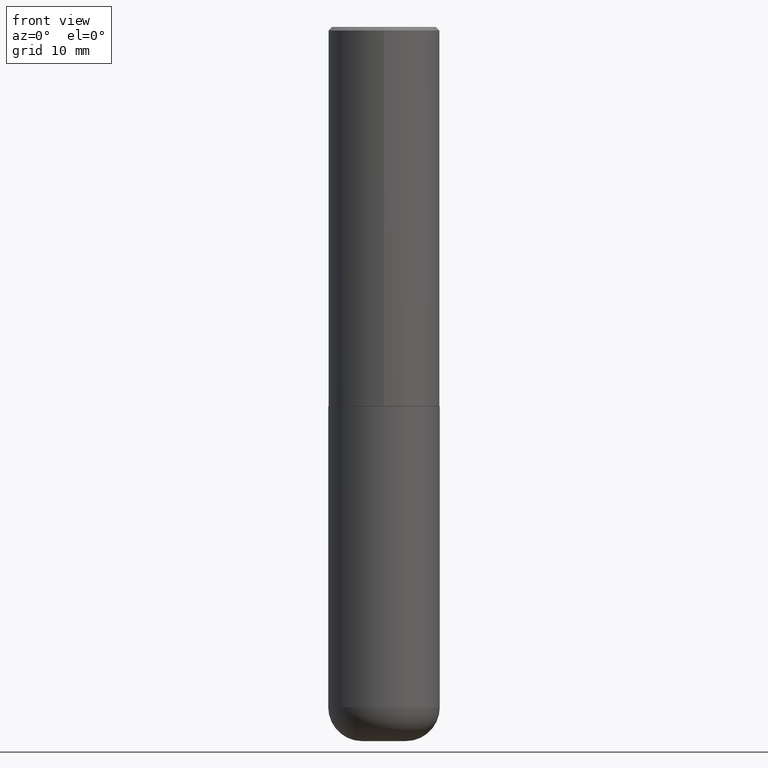
[diagram: clean part render]
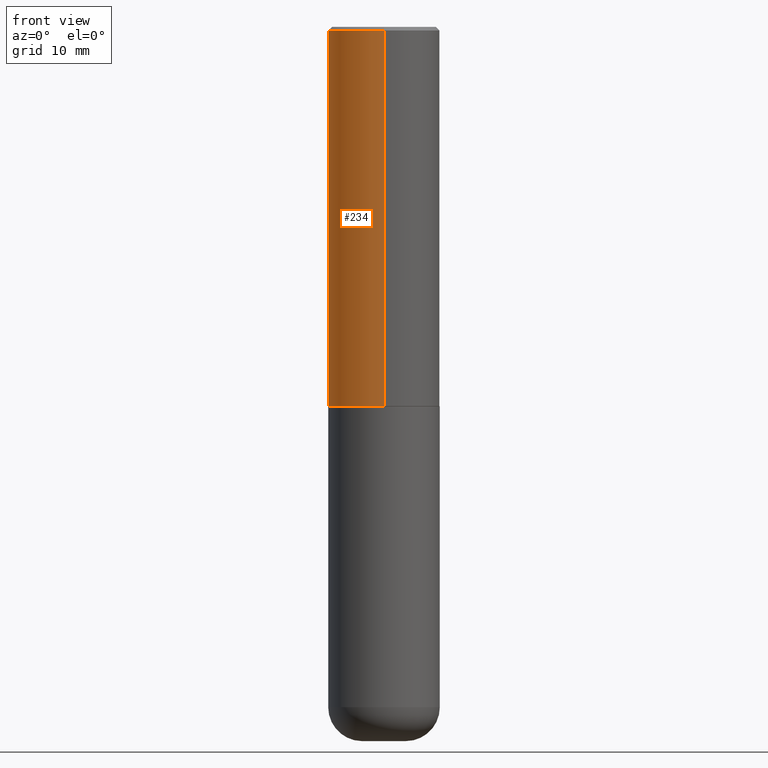
[diagram: same view with one face highlighted and labeled with its STEP entity id]
A machine part, front view. The second image highlights one B-rep face of the part: STEP entity #234.
In plain terms, the highlighted cylindrical surface (partial cylindrical patch) has radius 7.9375 mm, axis along (-0, 0, 1).
Its self-contained STEP definition (entity closure, byte-faithful):
#3 = VECTOR ( 'NONE', #203, 39.37007874015748143 ) ;
#7 = EDGE_CURVE ( 'NONE', #67, #396, #145, .T. ) ;
#9 = CARTESIAN_POINT ( 'NONE',  ( 2.182175836776958741E-15, 0.3124999999999999445, -0.02000000000000116268 ) ) ;
#24 = FACE_OUTER_BOUND ( 'NONE', #111, .T. ) ;
#51 = EDGE_CURVE ( 'NONE', #74, #396, #231, .T. ) ;
#67 = VERTEX_POINT ( 'NONE', #332 ) ;
#74 = VERTEX_POINT ( 'NONE', #9 ) ;
#79 = ORIENTED_EDGE ( 'NONE', *, *, #51, .F. ) ;
#100 = CARTESIAN_POINT ( 'NONE',  ( 5.192866564986985411E-29, -7.417781183046251262E-15, -2.123999999999999666 ) ) ;
#111 = EDGE_LOOP ( 'NONE', ( #213, #365, #248, #79 ) ) ;
#112 = EDGE_CURVE ( 'NONE', #302, #67, #307, .T. ) ;
#115 = CARTESIAN_POINT ( 'NONE',  ( -2.143905624303602824E-15, -0.3125000000000000555, -0.01999999999999897693 ) ) ;
#121 = DIRECTION ( 'NONE',  ( -2.444852431726452894E-29, 3.492364022149836358E-15, 1.000000000000000000 ) ) ;
#126 = AXIS2_PLACEMENT_3D ( 'NONE', #100, #171, #341 ) ;
#145 = LINE ( 'NONE', #338, #3 ) ;
#168 = LINE ( 'NONE', #394, #345 ) ;
#171 = DIRECTION ( 'NONE',  ( -2.444852431726452894E-29, 3.492364022149836358E-15, 1.000000000000000000 ) ) ;
#176 = EDGE_CURVE ( 'NONE', #302, #74, #168, .T. ) ;
#182 = AXIS2_PLACEMENT_3D ( 'NONE', #406, #289, #314 ) ;
#203 = DIRECTION ( 'NONE',  ( -2.444852431726452614E-29, 3.492364022149836358E-15, 1.000000000000000000 ) ) ;
#213 = ORIENTED_EDGE ( 'NONE', *, *, #176, .F. ) ;
#222 = CYLINDRICAL_SURFACE ( 'NONE', #182, 0.3125000000000001665 ) ;
#231 = CIRCLE ( 'NONE', #325, 0.3125000000000000000 ) ;
#234 = ADVANCED_FACE ( 'NONE', ( #24 ), #222, .T. ) ;
#248 = ORIENTED_EDGE ( 'NONE', *, *, #7, .T. ) ;
#289 = DIRECTION ( 'NONE',  ( -2.444852431726452894E-29, 3.492364022149836358E-15, 1.000000000000000000 ) ) ;
#293 = DIRECTION ( 'NONE',  ( -6.982962677686265133E-15, -1.000000000000000000, 3.496765431890256920E-15 ) ) ;
#302 = VERTEX_POINT ( 'NONE', #349 ) ;
#303 = DIRECTION ( 'NONE',  ( -2.444852431726452614E-29, 3.492364022149836358E-15, 1.000000000000000000 ) ) ;
#307 = CIRCLE ( 'NONE', #126, 0.3125000000000002776 ) ;
#314 = DIRECTION ( 'NONE',  ( -6.982962677686265133E-15, -1.000000000000000000, 3.492364022149836358E-15 ) ) ;
#325 = AXIS2_PLACEMENT_3D ( 'NONE', #407, #121, #293 ) ;
#332 = CARTESIAN_POINT ( 'NONE',  ( -2.182175836776908254E-15, -0.3125000000000077161, -2.123999999999998334 ) ) ;
#338 = CARTESIAN_POINT ( 'NONE',  ( -2.182175836776959136E-15, -0.3125000000000001665, 1.091363756921824478E-15 ) ) ;
#341 = DIRECTION ( 'NONE',  ( -6.982962677686265922E-15, -1.000000000000000000, 3.496765431890253764E-15 ) ) ;
#345 = VECTOR ( 'NONE', #303, 39.37007874015748143 ) ;
#349 = CARTESIAN_POINT ( 'NONE',  ( 2.220446049250340297E-15, 0.3124999999999928391, -2.124000000000000554 ) ) ;
#365 = ORIENTED_EDGE ( 'NONE', *, *, #112, .T. ) ;
#394 = CARTESIAN_POINT ( 'NONE',  ( 2.220446049250313475E-15, 0.3125000000000001665, -1.091363756921824478E-15 ) ) ;
#396 = VERTEX_POINT ( 'NONE', #115 ) ;
#406 = CARTESIAN_POINT ( 'NONE',  ( 0.000000000000000000, 0.000000000000000000, 0.000000000000000000 ) ) ;
#407 = CARTESIAN_POINT ( 'NONE',  ( 4.889704863452922148E-31, -6.984728044299695791E-17, -0.02000000000000006981 ) ) ;